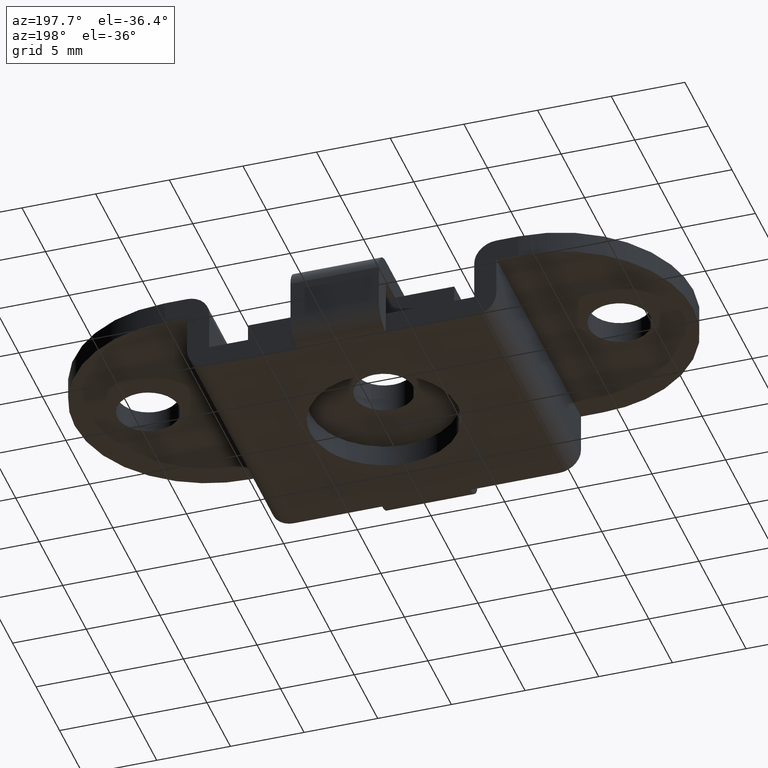
[diagram: clean part render]
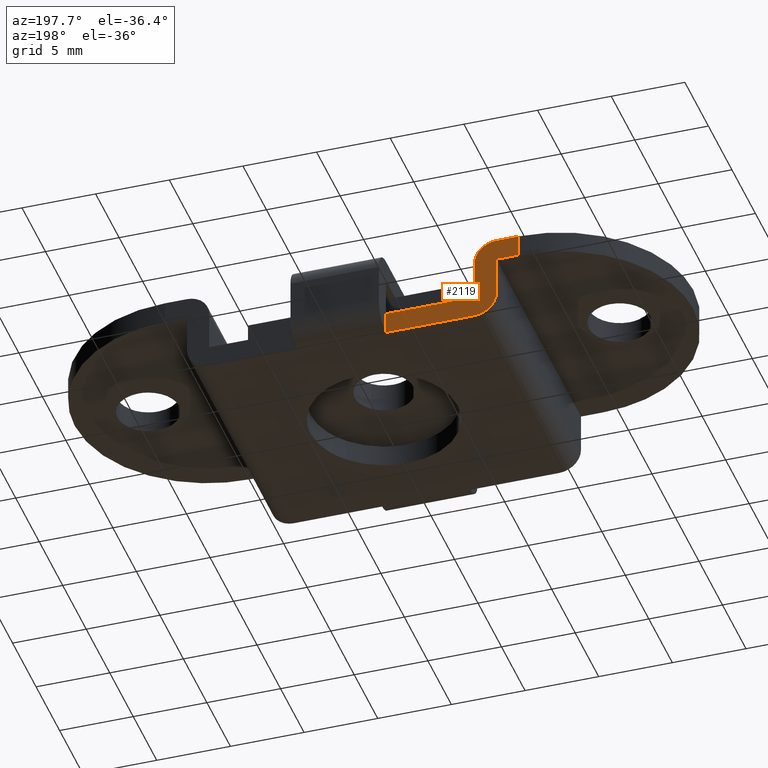
[diagram: same view with one face highlighted and labeled with its STEP entity id]
A machine part, auxiliary view. The second image highlights one B-rep face of the part: STEP entity #2119.
In plain terms, the highlighted face is a freeform B-spline surface patch.
Its self-contained STEP definition (entity closure, byte-faithful):
#1065=CARTESIAN_POINT('',(-10.500000000000000,9.0,5.700000000000000));
#1066=VERTEX_POINT('',#1065);
#1067=CARTESIAN_POINT('',(-9.0,9.0,4.200000000000000));
#1068=VERTEX_POINT('',#1067);
#1069=CARTESIAN_POINT('',(-10.500000000000000,9.0,5.700000000000000));
#1070=CARTESIAN_POINT('',(-10.389552792277780,9.000000000000002,5.700020192251236));
#1071=CARTESIAN_POINT('',(-10.180940462025770,8.999999999999988,5.676853394539768));
#1072=CARTESIAN_POINT('',(-9.899927707414610,9.000000000000030,5.584024062447181));
#1073=CARTESIAN_POINT('',(-9.673322516359113,8.999999999999957,5.459289235149973));
#1074=CARTESIAN_POINT('',(-9.464755083876703,9.000000000000053,5.296529643681336));
#1075=CARTESIAN_POINT('',(-9.279576353710979,8.999999999999991,5.089692356114492));
#1076=CARTESIAN_POINT('',(-9.118132099505454,9.000000000000009,4.812696311184907));
#1077=CARTESIAN_POINT('',(-9.021142245683929,9.0,4.512933081598130));
#1078=CARTESIAN_POINT('',(-8.999991551064070,8.999999999999996,4.298173476129058));
#1079=CARTESIAN_POINT('',(-9.0,9.0,4.200000000000000));
#1080=B_SPLINE_CURVE_WITH_KNOTS('',3,(#1069,#1070,#1071,#1072,#1073,#1074,#1075,#1076,#1077,#1078,#1079),.UNSPECIFIED.,.F.,.U.,(4,1,1,1,1,1,1,1,4),(0.000000052719273,0.331338341886281,0.625868551229856,0.883582025426378,1.104485702340122,1.417397069881645,1.711931886898822,2.061685967823337,2.356209274317297),.UNSPECIFIED.);
#1081=EDGE_CURVE('',#1066,#1068,#1080,.T.);
#1187=CARTESIAN_POINT('',(-9.0,9.0,0.0));
#1188=VERTEX_POINT('',#1187);
#1189=CARTESIAN_POINT('',(-10.500000000000000,9.0,1.500000000000000));
#1190=VERTEX_POINT('',#1189);
#1191=CARTESIAN_POINT('',(-9.0,9.0,0.0));
#1192=CARTESIAN_POINT('',(-9.177965652071983,9.000000000000009,-0.000150898832275));
#1193=CARTESIAN_POINT('',(-9.472375867247381,9.000000000000020,0.053063774533135));
#1194=CARTESIAN_POINT('',(-9.835443049500789,8.999999999999956,0.238629027900212));
#1195=CARTESIAN_POINT('',(-10.052718731605861,9.000000000000027,0.421470483990742));
#1196=CARTESIAN_POINT('',(-10.232057215900539,8.999999999999995,0.631976568299604));
#1197=CARTESIAN_POINT('',(-10.378076238081650,9.000000000000009,0.875538676074653));
#1198=CARTESIAN_POINT('',(-10.478852268027349,8.999999999999982,1.187070911514200));
#1199=CARTESIAN_POINT('',(-10.500010195741030,9.000000000000044,1.401825748368099));
#1200=CARTESIAN_POINT('',(-10.500000000000000,9.0,1.500000000000000));
#1201=B_SPLINE_CURVE_WITH_KNOTS('',3,(#1191,#1192,#1193,#1194,#1195,#1196,#1197,#1198,#1199,#1200),.UNSPECIFIED.,.F.,.U.,(4,1,1,1,1,1,1,4),(0.000000052720840,0.533827499167725,0.883582025427550,1.214912308790171,1.380582247977241,1.711931886899523,2.061685967823627,2.356209274317259),.UNSPECIFIED.);
#1202=EDGE_CURVE('',#1188,#1190,#1201,.T.);
#1720=CARTESIAN_POINT('',(-12.0,9.0,5.700000000000000));
#1721=VERTEX_POINT('',#1720);
#1739=CARTESIAN_POINT('',(-12.0,9.0,4.199999999999870));
#1740=VERTEX_POINT('',#1739);
#1741=CARTESIAN_POINT('',(-12.0,9.0,4.199999999999870));
#1742=CARTESIAN_POINT('',(-12.0,9.0,5.700000000000000));
#1743=QUASI_UNIFORM_CURVE('',1,(#1741,#1742),.UNSPECIFIED.,.F.,.U.);
#1744=EDGE_CURVE('',#1740,#1721,#1743,.T.);
#1797=CARTESIAN_POINT('',(-10.500000000000000,9.0,4.199999999999889));
#1798=VERTEX_POINT('',#1797);
#1799=CARTESIAN_POINT('',(-12.0,9.0,4.199999999999870));
#1800=CARTESIAN_POINT('',(-10.500000000000000,9.0,4.199999999999889));
#1801=QUASI_UNIFORM_CURVE('',1,(#1799,#1800),.UNSPECIFIED.,.F.,.U.);
#1802=EDGE_CURVE('',#1740,#1798,#1801,.T.);
#1834=CARTESIAN_POINT('',(-3.0,9.0,0.0));
#1835=VERTEX_POINT('',#1834);
#1836=CARTESIAN_POINT('',(-3.0,9.0,0.0));
#1837=CARTESIAN_POINT('',(-9.0,9.0,0.0));
#1838=QUASI_UNIFORM_CURVE('',1,(#1836,#1837),.UNSPECIFIED.,.F.,.U.);
#1839=EDGE_CURVE('',#1835,#1188,#1838,.T.);
#1919=CARTESIAN_POINT('',(-9.0,9.0,1.499999999999900));
#1920=VERTEX_POINT('',#1919);
#1921=CARTESIAN_POINT('',(-9.0,9.0,4.200000000000000));
#1922=CARTESIAN_POINT('',(-9.0,9.0,1.499999999999900));
#1923=QUASI_UNIFORM_CURVE('',1,(#1921,#1922),.UNSPECIFIED.,.F.,.U.);
#1924=EDGE_CURVE('',#1068,#1920,#1923,.T.);
#1953=CARTESIAN_POINT('',(-12.0,9.0,5.700000000000000));
#1954=CARTESIAN_POINT('',(-10.500000000000000,9.0,5.700000000000000));
#1955=QUASI_UNIFORM_CURVE('',1,(#1953,#1954),.UNSPECIFIED.,.F.,.U.);
#1956=EDGE_CURVE('',#1721,#1066,#1955,.T.);
#1976=CARTESIAN_POINT('',(-10.500000000000000,9.0,1.500000000000000));
#1977=CARTESIAN_POINT('',(-10.500000000000000,9.0,4.199999999999889));
#1978=QUASI_UNIFORM_CURVE('',1,(#1976,#1977),.UNSPECIFIED.,.F.,.U.);
#1979=EDGE_CURVE('',#1190,#1798,#1978,.T.);
#2092=CARTESIAN_POINT('',(-12.449549982556260,9.0,5.984714988952296));
#2093=CARTESIAN_POINT('',(-2.550449776044935,9.0,5.984714988952296));
#2094=CARTESIAN_POINT('',(-12.449549982556260,9.0,-0.284715141838208));
#2095=CARTESIAN_POINT('',(-2.550449776044935,9.0,-0.284715141838208));
#2096=B_SPLINE_SURFACE_WITH_KNOTS('',1,1,((#2092,#2094),(#2093,#2095)),.UNSPECIFIED.,.F.,.F.,.U.,(2,2),(2,2),(0.0,9.899100206511321),(0.0,6.269430130790504),.UNSPECIFIED.);
#2097=ORIENTED_EDGE('',*,*,#1839,.T.);
#2098=ORIENTED_EDGE('',*,*,#1202,.T.);
#2099=ORIENTED_EDGE('',*,*,#1979,.T.);
#2100=ORIENTED_EDGE('',*,*,#1802,.F.);
#2101=ORIENTED_EDGE('',*,*,#1744,.T.);
#2102=ORIENTED_EDGE('',*,*,#1956,.T.);
#2103=ORIENTED_EDGE('',*,*,#1081,.T.);
#2104=ORIENTED_EDGE('',*,*,#1924,.T.);
#2105=CARTESIAN_POINT('',(-3.0,9.0,1.499999999999900));
#2106=VERTEX_POINT('',#2105);
#2107=CARTESIAN_POINT('',(-9.0,9.0,1.499999999999900));
#2108=CARTESIAN_POINT('',(-3.0,9.0,1.499999999999900));
#2109=QUASI_UNIFORM_CURVE('',1,(#2107,#2108),.UNSPECIFIED.,.F.,.U.);
#2110=EDGE_CURVE('',#1920,#2106,#2109,.T.);
#2111=ORIENTED_EDGE('',*,*,#2110,.T.);
#2112=CARTESIAN_POINT('',(-3.0,9.0,0.0));
#2113=CARTESIAN_POINT('',(-3.0,9.0,1.499999999999900));
#2114=QUASI_UNIFORM_CURVE('',1,(#2112,#2113),.UNSPECIFIED.,.F.,.U.);
#2115=EDGE_CURVE('',#1835,#2106,#2114,.T.);
#2116=ORIENTED_EDGE('',*,*,#2115,.F.);
#2117=EDGE_LOOP('',(#2097,#2098,#2099,#2100,#2101,#2102,#2103,#2104,#2111,#2116));
#2118=FACE_OUTER_BOUND('',#2117,.T.);
#2119=ADVANCED_FACE('',(#2118),#2096,.T.);